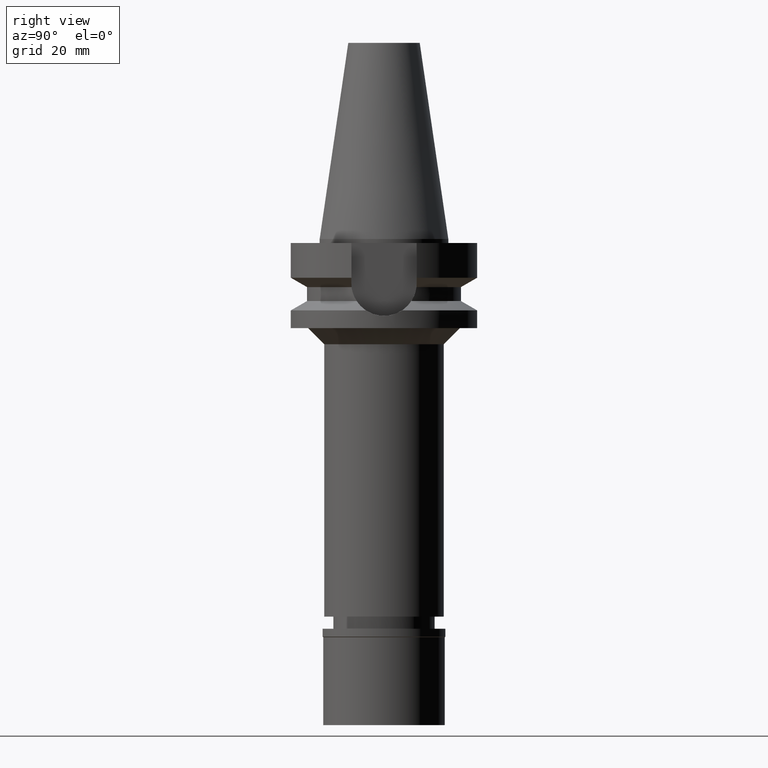
[diagram: clean part render]
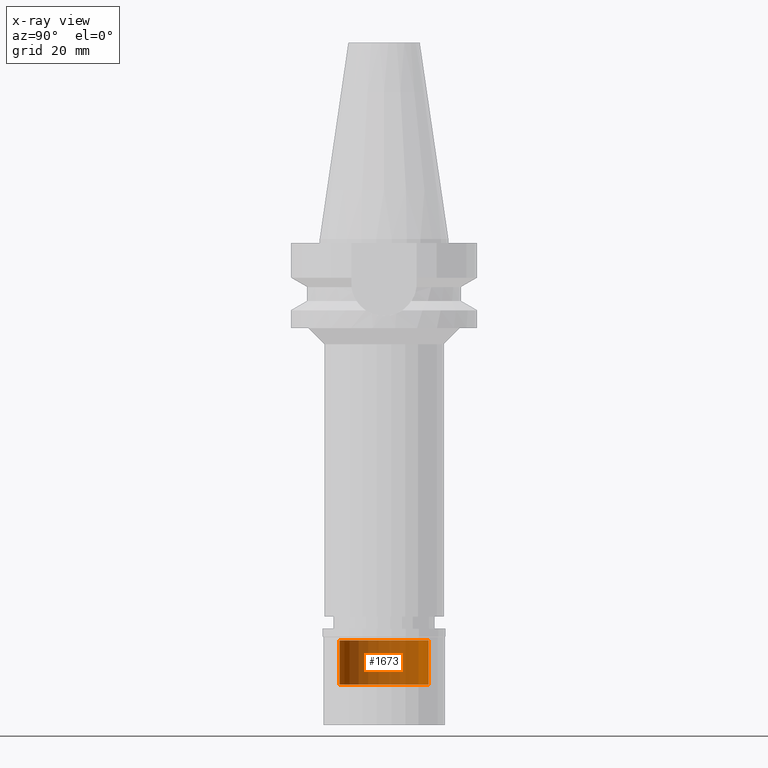
[diagram: x-ray — body ghosted, one internal face saturated and labeled with its STEP entity id]
A machine part, right view, then the same camera in x-ray: the body is ghosted and one INTERNAL B-rep face — a face not visible from any outside direction — is saturated and labeled: STEP entity #1673.
In plain terms, the highlighted cylindrical surface (partial cylindrical patch) has radius 11 mm, axis along (0, 0, -1).
Its self-contained STEP definition (entity closure, byte-faithful):
#13 = LINE ( 'NONE', #2309, #1524 ) ;
#71 = ORIENTED_EDGE ( 'NONE', *, *, #2327, .T. ) ;
#123 = EDGE_CURVE ( 'NONE', #2798, #2566, #281, .T. ) ;
#278 = DIRECTION ( 'NONE',  ( 0.0000000000000000000, 0.0000000000000000000, -1.000000000000000000 ) ) ;
#281 = CIRCLE ( 'NONE', #2375, 11.00000000000000000 ) ;
#314 = FACE_OUTER_BOUND ( 'NONE', #1791, .T. ) ;
#318 = CARTESIAN_POINT ( 'NONE',  ( 0.0000000000000000000, 11.00000000000000000, -110.0000000000000000 ) ) ;
#710 = DIRECTION ( 'NONE',  ( 0.0000000000000000000, 0.0000000000000000000, -1.000000000000000000 ) ) ;
#744 = VERTEX_POINT ( 'NONE', #1788 ) ;
#802 = AXIS2_PLACEMENT_3D ( 'NONE', #1538, #2210, #841 ) ;
#841 = DIRECTION ( 'NONE',  ( 0.0000000000000000000, -1.000000000000000000, 0.0000000000000000000 ) ) ;
#983 = LINE ( 'NONE', #1878, #990 ) ;
#990 = VECTOR ( 'NONE', #278, 1000.000000000000000 ) ;
#998 = DIRECTION ( 'NONE',  ( 0.0000000000000000000, 0.0000000000000000000, -1.000000000000000000 ) ) ;
#1016 = CARTESIAN_POINT ( 'NONE',  ( 0.0000000000000000000, 1.914367876426999810E-14, -110.0000000000000000 ) ) ;
#1111 = CARTESIAN_POINT ( 'NONE',  ( 0.0000000000000000000, -11.00000000000000000, -110.0000000000000000 ) ) ;
#1524 = VECTOR ( 'NONE', #710, 1000.000000000000000 ) ;
#1538 = CARTESIAN_POINT ( 'NONE',  ( 0.0000000000000000000, 1.914367876426999810E-14, -99.09999999999999432 ) ) ;
#1619 = DIRECTION ( 'NONE',  ( 0.0000000000000000000, -1.000000000000000000, 0.0000000000000000000 ) ) ;
#1673 = ADVANCED_FACE ( 'NONE', ( #314 ), #2362, .T. ) ;
#1676 = ORIENTED_EDGE ( 'NONE', *, *, #123, .T. ) ;
#1719 = DIRECTION ( 'NONE',  ( 0.0000000000000000000, 0.0000000000000000000, 1.000000000000000000 ) ) ;
#1788 = CARTESIAN_POINT ( 'NONE',  ( 0.0000000000000000000, -11.00000000000000000, -99.09999999999999432 ) ) ;
#1791 = EDGE_LOOP ( 'NONE', ( #1676, #2372, #71, #2787 ) ) ;
#1878 = CARTESIAN_POINT ( 'NONE',  ( 0.0000000000000000000, 11.00000000000000000, -99.09999999999999432 ) ) ;
#2102 = CIRCLE ( 'NONE', #802, 11.00000000000000000 ) ;
#2141 = CARTESIAN_POINT ( 'NONE',  ( 0.0000000000000000000, 1.914367876426999810E-14, 56.32000000000000028 ) ) ;
#2210 = DIRECTION ( 'NONE',  ( 0.0000000000000000000, 0.0000000000000000000, -1.000000000000000000 ) ) ;
#2229 = VERTEX_POINT ( 'NONE', #2857 ) ;
#2277 = AXIS2_PLACEMENT_3D ( 'NONE', #2141, #998, #1619 ) ;
#2309 = CARTESIAN_POINT ( 'NONE',  ( 0.0000000000000000000, -11.00000000000000000, -99.09999999999999432 ) ) ;
#2327 = EDGE_CURVE ( 'NONE', #744, #2229, #2102, .T. ) ;
#2362 = CYLINDRICAL_SURFACE ( 'NONE', #2277, 11.00000000000000000 ) ;
#2372 = ORIENTED_EDGE ( 'NONE', *, *, #2639, .F. ) ;
#2375 = AXIS2_PLACEMENT_3D ( 'NONE', #1016, #1719, #2657 ) ;
#2566 = VERTEX_POINT ( 'NONE', #1111 ) ;
#2639 = EDGE_CURVE ( 'NONE', #744, #2566, #13, .T. ) ;
#2657 = DIRECTION ( 'NONE',  ( 0.0000000000000000000, 1.000000000000000000, 0.0000000000000000000 ) ) ;
#2692 = EDGE_CURVE ( 'NONE', #2229, #2798, #983, .T. ) ;
#2787 = ORIENTED_EDGE ( 'NONE', *, *, #2692, .T. ) ;
#2798 = VERTEX_POINT ( 'NONE', #318 ) ;
#2857 = CARTESIAN_POINT ( 'NONE',  ( 0.0000000000000000000, 11.00000000000000000, -99.09999999999999432 ) ) ;